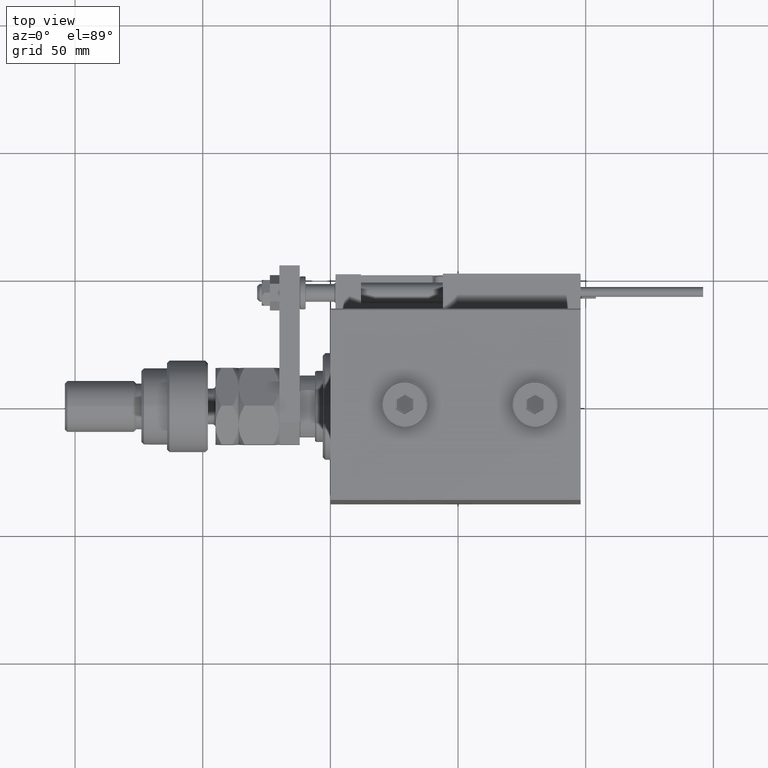
[diagram: clean part render]
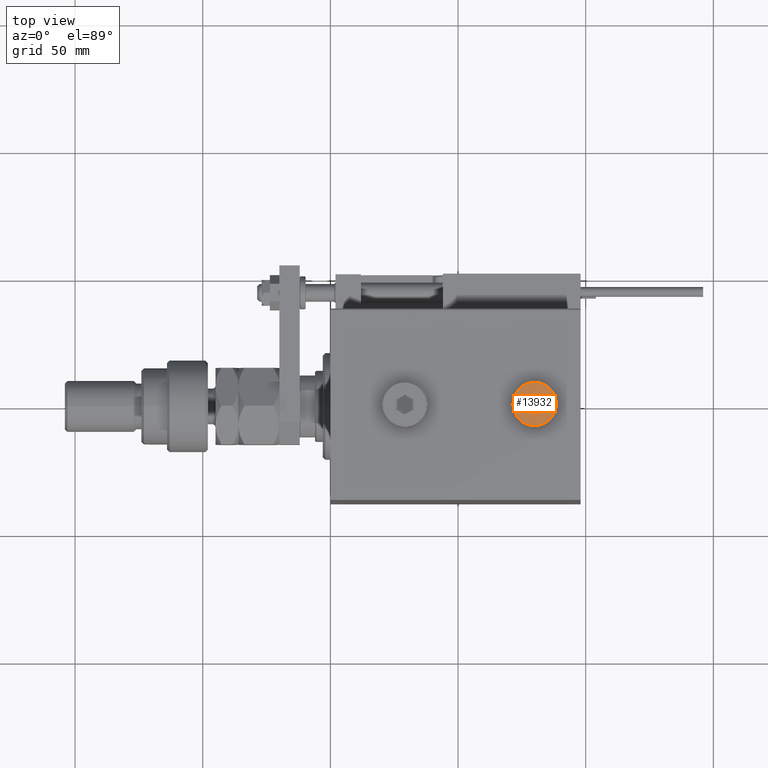
[diagram: same view with one face highlighted and labeled with its STEP entity id]
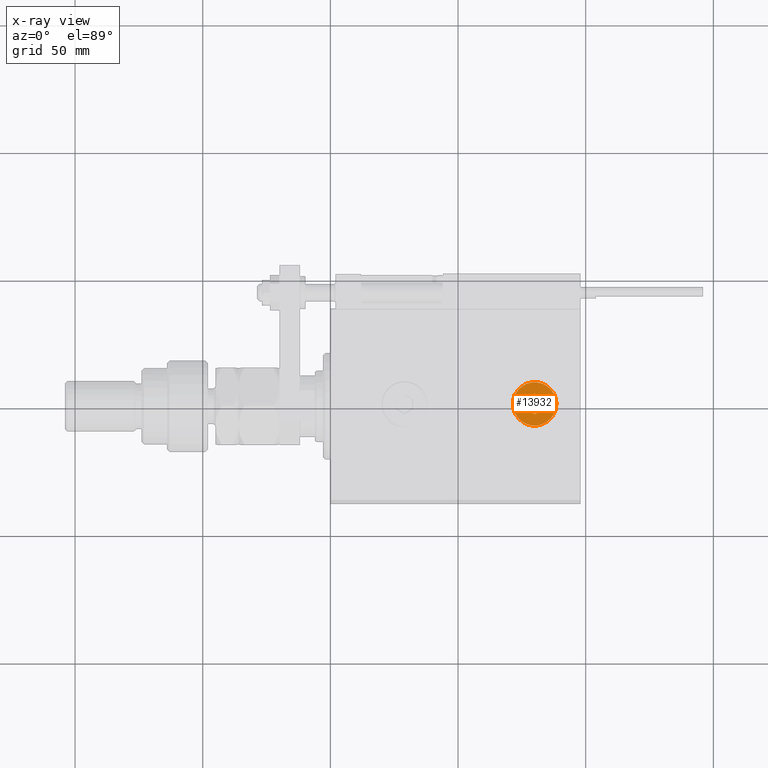
[diagram: x-ray of the same camera — body ghosted, the highlighted face saturated]
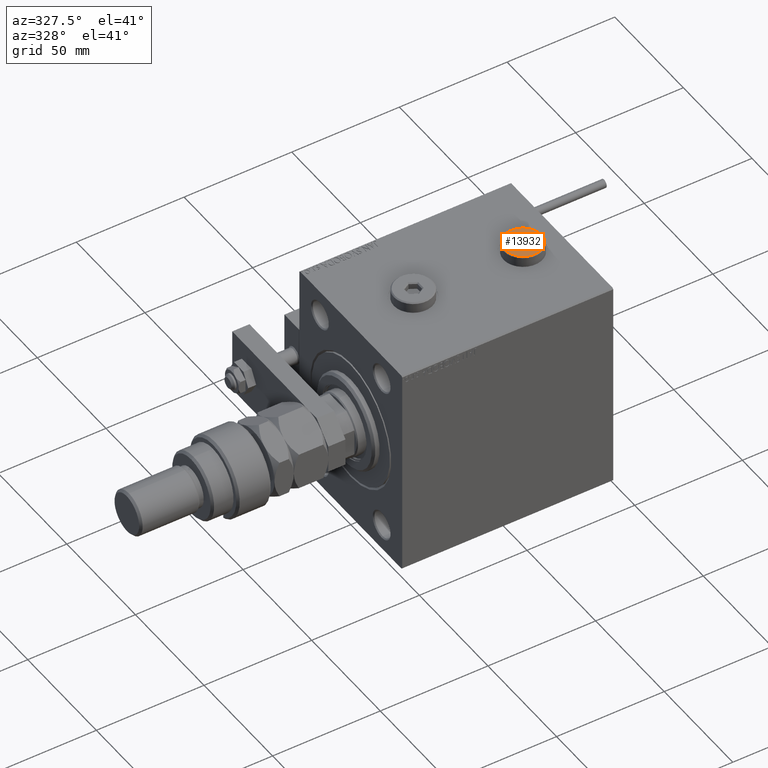
[diagram: same view with one face highlighted and labeled with its STEP entity id]
A machine part, top view. The second image highlights one B-rep face of the part: STEP entity #13932.
The next image is the same camera in x-ray: the body ghosted, the highlighted face saturated — about 0% of this face is hidden behind the body in this view.
A second angle (auxiliary view) of the same face is appended — the face is thin or edge-on in the first view.
In plain terms, the highlighted planar face has unit normal (0, 0, 1).
Its self-contained STEP definition (entity closure, byte-faithful):
#960 = CARTESIAN_POINT ( 'NONE',  ( 3.500000000000006661, -1.732050807568878303, 5.000000000000000000 ) ) ;
#1408 = ORIENTED_EDGE ( 'NONE', *, *, #43346, .T. ) ;
#2327 = CARTESIAN_POINT ( 'NONE',  ( 3.500000000000006661, 2.020725942163694722, 5.000000000000000000 ) ) ;
#3382 = CARTESIAN_POINT ( 'NONE',  ( 0.000000000000000000, 0.000000000000000000, 5.000000000000000000 ) ) ;
#3802 = VECTOR ( 'NONE', #25387, 1000.000000000000000 ) ;
#5485 = CARTESIAN_POINT ( 'NONE',  ( -8.500000000000010658, 0.000000000000000000, 5.000000000000000000 ) ) ;
#6428 = EDGE_CURVE ( 'NONE', #32765, #13566, #41969, .T. ) ;
#6740 = VERTEX_POINT ( 'NONE', #10773 ) ;
#7600 = FACE_OUTER_BOUND ( 'NONE', #17478, .T. ) ;
#8126 = DIRECTION ( 'NONE',  ( -0.8660254037844387076, -0.4999999999999998890, 0.000000000000000000 ) ) ;
#8174 = DIRECTION ( 'NONE',  ( 0.000000000000000000, 0.000000000000000000, 1.000000000000000000 ) ) ;
#10773 = CARTESIAN_POINT ( 'NONE',  ( -3.500000000000006661, -2.020725942163694278, 5.000000000000000000 ) ) ;
#12470 = ORIENTED_EDGE ( 'NONE', *, *, #38740, .T. ) ;
#12511 = DIRECTION ( 'NONE',  ( 0.8660254037844387076, -0.4999999999999998890, 0.000000000000000000 ) ) ;
#13566 = VERTEX_POINT ( 'NONE', #45574 ) ;
#13932 = ADVANCED_FACE ( 'NONE', ( #25000, #7600 ), #41854, .T. ) ;
#14336 = AXIS2_PLACEMENT_3D ( 'NONE', #39938, #35449, #14953 ) ;
#14630 = EDGE_CURVE ( 'NONE', #26219, #40360, #37228, .T. ) ;
#14835 = ORIENTED_EDGE ( 'NONE', *, *, #54463, .T. ) ;
#14953 = DIRECTION ( 'NONE',  ( 1.000000000000000000, 0.000000000000000000, 0.000000000000000000 ) ) ;
#15677 = VECTOR ( 'NONE', #8126, 1000.000000000000000 ) ;
#16430 = CARTESIAN_POINT ( 'NONE',  ( -0.2500000000000027756, 3.897114317029978459, 5.000000000000000000 ) ) ;
#16588 = DIRECTION ( 'NONE',  ( 1.000000000000000000, 0.000000000000000000, -0.000000000000000000 ) ) ;
#17478 = EDGE_LOOP ( 'NONE', ( #42359, #46037 ) ) ;
#18369 = AXIS2_PLACEMENT_3D ( 'NONE', #51114, #8174, #21617 ) ;
#19637 = DIRECTION ( 'NONE',  ( -0.8660254037844385966, 0.4999999999999999445, 0.000000000000000000 ) ) ;
#19640 = VECTOR ( 'NONE', #46953, 1000.000000000000000 ) ;
#20481 = VERTEX_POINT ( 'NONE', #2327 ) ;
#21187 = LINE ( 'NONE', #38856, #26589 ) ;
#21343 = EDGE_LOOP ( 'NONE', ( #31470, #48602, #1408, #51077, #12470, #14835 ) ) ;
#21617 = DIRECTION ( 'NONE',  ( 1.000000000000000000, 0.000000000000000000, 0.000000000000000000 ) ) ;
#24688 = EDGE_CURVE ( 'NONE', #40360, #26219, #34955, .T. ) ;
#25000 = FACE_BOUND ( 'NONE', #21343, .T. ) ;
#25387 = DIRECTION ( 'NONE',  ( 0.8660254037844387076, 0.4999999999999998335, 0.000000000000000000 ) ) ;
#26219 = VERTEX_POINT ( 'NONE', #5485 ) ;
#26589 = VECTOR ( 'NONE', #12511, 1000.000000000000000 ) ;
#28803 = EDGE_CURVE ( 'NONE', #20481, #55093, #52627, .T. ) ;
#30595 = CARTESIAN_POINT ( 'NONE',  ( -1.006139216460143630E-15, -4.041451884327387667, 5.000000000000000000 ) ) ;
#31470 = ORIENTED_EDGE ( 'NONE', *, *, #48686, .T. ) ;
#32765 = VERTEX_POINT ( 'NONE', #46636 ) ;
#33781 = VECTOR ( 'NONE', #19637, 1000.000000000000114 ) ;
#34955 = CIRCLE ( 'NONE', #14336, 8.500000000000010658 ) ;
#35449 = DIRECTION ( 'NONE',  ( 0.000000000000000000, 0.000000000000000000, 1.000000000000000000 ) ) ;
#36204 = CARTESIAN_POINT ( 'NONE',  ( -3.250000000000003109, -2.165063509461102598, 5.000000000000000000 ) ) ;
#37228 = CIRCLE ( 'NONE', #18369, 8.500000000000010658 ) ;
#37718 = CARTESIAN_POINT ( 'NONE',  ( -3.500000000000006661, 1.732050807568878081, 5.000000000000000000 ) ) ;
#38740 = EDGE_CURVE ( 'NONE', #55093, #51369, #38967, .T. ) ;
#38856 = CARTESIAN_POINT ( 'NONE',  ( 3.250000000000003109, 2.165063509461103042, 5.000000000000000000 ) ) ;
#38967 = LINE ( 'NONE', #55543, #15677 ) ;
#39938 = CARTESIAN_POINT ( 'NONE',  ( 0.000000000000000000, 0.000000000000000000, 5.000000000000000000 ) ) ;
#40360 = VERTEX_POINT ( 'NONE', #49039 ) ;
#41854 = PLANE ( 'NONE',  #43583 ) ;
#41969 = LINE ( 'NONE', #16430, #3802 ) ;
#42359 = ORIENTED_EDGE ( 'NONE', *, *, #14630, .T. ) ;
#43173 = VECTOR ( 'NONE', #48126, 1000.000000000000000 ) ;
#43346 = EDGE_CURVE ( 'NONE', #13566, #20481, #21187, .T. ) ;
#43583 = AXIS2_PLACEMENT_3D ( 'NONE', #3382, #51108, #16588 ) ;
#45457 = LINE ( 'NONE', #36204, #33781 ) ;
#45574 = CARTESIAN_POINT ( 'NONE',  ( 1.590596867181068292E-15, 4.041451884327386779, 5.000000000000000000 ) ) ;
#46037 = ORIENTED_EDGE ( 'NONE', *, *, #24688, .T. ) ;
#46636 = CARTESIAN_POINT ( 'NONE',  ( -3.500000000000006661, 2.020725942163692945, 5.000000000000000000 ) ) ;
#46953 = DIRECTION ( 'NONE',  ( 0.000000000000000000, 1.000000000000000000, 0.000000000000000000 ) ) ;
#48126 = DIRECTION ( 'NONE',  ( 0.000000000000000000, -1.000000000000000000, 0.000000000000000000 ) ) ;
#48602 = ORIENTED_EDGE ( 'NONE', *, *, #6428, .T. ) ;
#48686 = EDGE_CURVE ( 'NONE', #6740, #32765, #54281, .T. ) ;
#49039 = CARTESIAN_POINT ( 'NONE',  ( 8.500000000000010658, 1.071565949253934716E-15, 5.000000000000000000 ) ) ;
#51077 = ORIENTED_EDGE ( 'NONE', *, *, #28803, .T. ) ;
#51108 = DIRECTION ( 'NONE',  ( 0.000000000000000000, 0.000000000000000000, 1.000000000000000000 ) ) ;
#51114 = CARTESIAN_POINT ( 'NONE',  ( 0.000000000000000000, 0.000000000000000000, 5.000000000000000000 ) ) ;
#51369 = VERTEX_POINT ( 'NONE', #30595 ) ;
#52627 = LINE ( 'NONE', #960, #43173 ) ;
#54179 = CARTESIAN_POINT ( 'NONE',  ( 3.500000000000006661, -2.020725942163693833, 5.000000000000000000 ) ) ;
#54281 = LINE ( 'NONE', #37718, #19640 ) ;
#54463 = EDGE_CURVE ( 'NONE', #51369, #6740, #45457, .T. ) ;
#55093 = VERTEX_POINT ( 'NONE', #54179 ) ;
#55543 = CARTESIAN_POINT ( 'NONE',  ( 0.2500000000000027756, -3.897114317029979347, 5.000000000000000000 ) ) ;